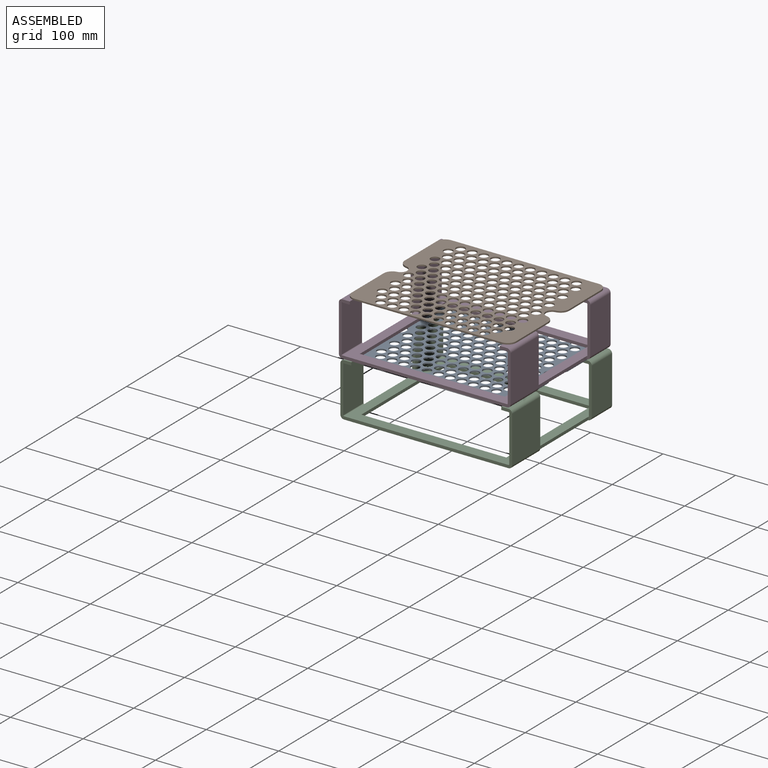
[diagram: assembled view]
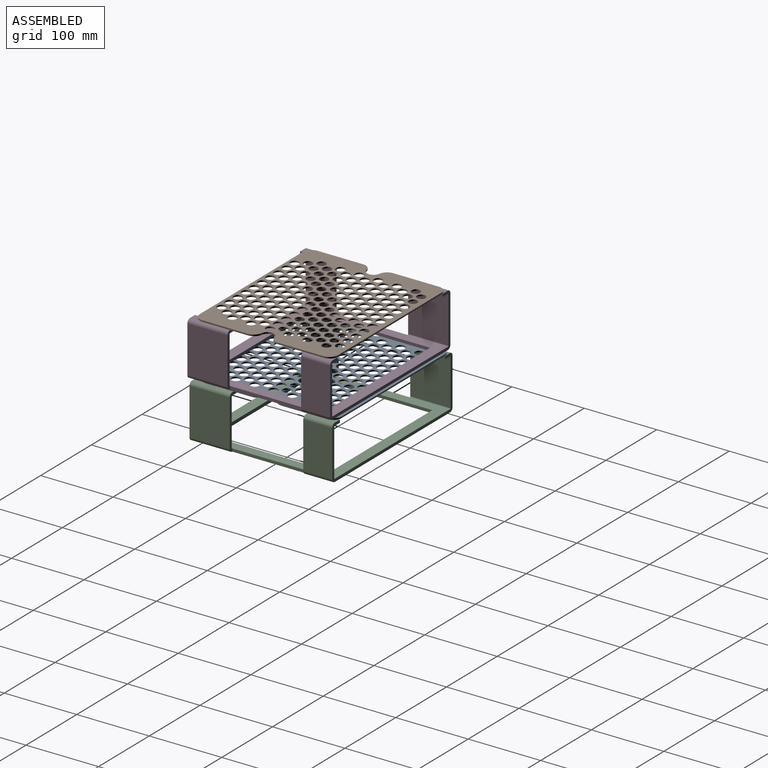
[diagram: assembled view, second angle]
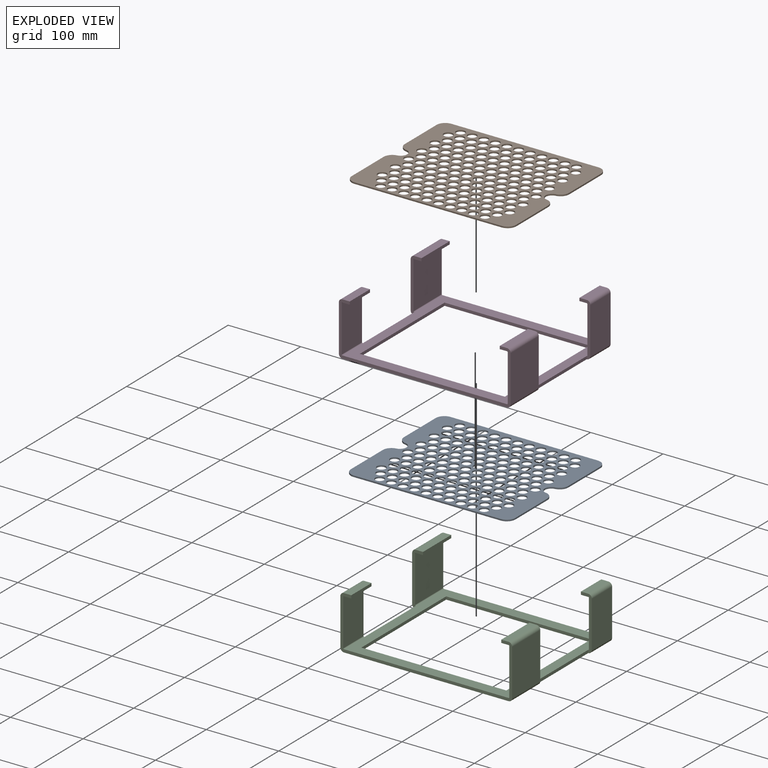
[diagram: exploded view]
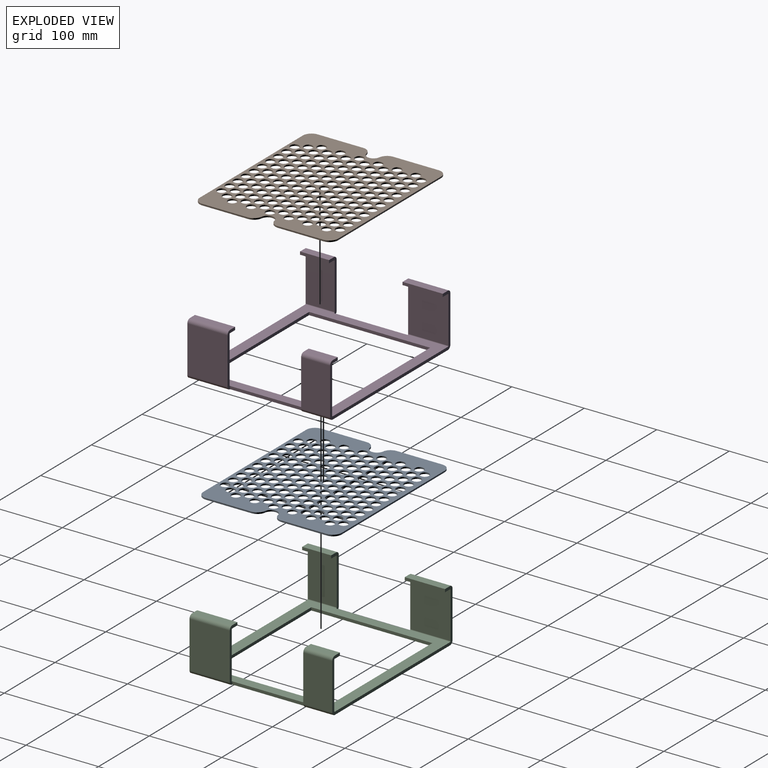
[diagram: exploded view, second angle]
ASSEMBLY  parts=4 mates=3
PART A: 177 faces, bbox 227x191x2 mm
  f0: plane 62.72x2mm, normal (-1,0,0), area 125.4mm2, adj f8,f9,f169,f170
  f1: plane 203x2mm, normal (0,-1,0), area 406mm2, adj f8,f9,f170,f171
  f2: plane 62.72x2mm, normal (1,0,0), area 125.4mm2, adj f8,f9,f171,f172
  f3: cylinder r=9mm len=17.82mm, axis (0,0,-1), area 51.4mm2, adj f8,f9,f172,f173
  f4: plane 62.72x2mm, normal (1,0,0), area 125.4mm2, adj f8,f9,f173,f174
  f5: plane 203x2mm, normal (0,1,0), area 406mm2, adj f8,f9,f174,f175
  f6: plane 62.72x2mm, normal (-1,0,0), area 125.4mm2, adj f8,f9,f175,f176
  f7: cylinder r=9mm len=17.82mm, axis (0,0,-1), area 51.4mm2, adj f8,f9,f169,f176
  f8: plane 227x191mm, normal (0,0,1), area 24557.8mm2, adj f0,f1,f2,f3,f4,f5,f6,f7
  f9: plane 227x191mm, normal (0,0,-1), area 24557.8mm2, adj f0,f1,f2,f3,f4,f5,f6,f7
  f10: cylinder r=6mm len=12mm, axis (0,0,1), area 75.4mm2, adj f8,f9
  f11: cylinder r=6mm len=12mm, axis (0,0,1), area 75.4mm2, adj f8,f9
  f12: cylinder r=6mm len=12mm, axis (0,0,1), area 75.4mm2, adj f8,f9
  f13: cylinder r=6mm len=12mm, axis (0,0,1), area 75.4mm2, adj f8,f9
  f14: cylinder r=6mm len=12mm, axis (0,0,1), area 75.4mm2, adj f8,f9
  f15: cylinder r=6mm len=12mm, axis (0,0,1), area 75.4mm2, adj f8,f9
  f16: cylinder r=6mm len=12mm, axis (0,0,1), area 75.4mm2, adj f8,f9
  f17: cylinder r=6mm len=12mm, axis (0,0,1), area 75.4mm2, adj f8,f9
  f18: cylinder r=6mm len=12mm, axis (0,0,1), area 75.4mm2, adj f8,f9
  f19: cylinder r=6mm len=12mm, axis (0,0,1), area 75.4mm2, adj f8,f9
  f20: cylinder r=6mm len=12mm, axis (0,0,1), area 75.4mm2, adj f8,f9
  f21: cylinder r=6mm len=12mm, axis (0,0,1), area 75.4mm2, adj f8,f9
  f22: cylinder r=6mm len=12mm, axis (0,0,1), area 75.4mm2, adj f8,f9
  f23: cylinder r=6mm len=12mm, axis (0,0,1), area 75.4mm2, adj f8,f9
  f24: cylinder r=6mm len=12mm, axis (0,0,1), area 75.4mm2, adj f8,f9
  f25: cylinder r=6mm len=12mm, axis (0,0,1), area 75.4mm2, adj f8,f9
  f26: cylinder r=6mm len=12mm, axis (0,0,1), area 75.4mm2, adj f8,f9
  f27: cylinder r=6mm len=12mm, axis (0,0,1), area 75.4mm2, adj f8,f9
  f28: cylinder r=6mm len=12mm, axis (0,0,1), area 75.4mm2, adj f8,f9
  f29: cylinder r=6mm len=12mm, axis (0,0,1), area 75.4mm2, adj f8,f9
  f30: cylinder r=6mm len=12mm, axis (0,0,1), area 75.4mm2, adj f8,f9
  f31: cylinder r=6mm len=12mm, axis (0,0,1), area 75.4mm2, adj f8,f9
  f32: cylinder r=6mm len=12mm, axis (0,0,1), area 75.4mm2, adj f8,f9
  f33: cylinder r=6mm len=12mm, axis (0,0,1), area 75.4mm2, adj f8,f9
  f34: cylinder r=6mm len=12mm, axis (0,0,1), area 75.4mm2, adj f8,f9
  f35: cylinder r=6mm len=12mm, axis (0,0,1), area 75.4mm2, adj f8,f9
  f36: cylinder r=6mm len=12mm, axis (0,0,1), area 75.4mm2, adj f8,f9
  f37: cylinder r=6mm len=12mm, axis (0,0,1), area 75.4mm2, adj f8,f9
  f38: cylinder r=6mm len=12mm, axis (0,0,1), area 75.4mm2, adj f8,f9
  f39: cylinder r=6mm len=12mm, axis (0,0,1), area 75.4mm2, adj f8,f9
  f40: cylinder r=6mm len=12mm, axis (0,0,1), area 75.4mm2, adj f8,f9
  f41: cylinder r=6mm len=12mm, axis (0,0,1), area 75.4mm2, adj f8,f9
  f42: cylinder r=6mm len=12mm, axis (0,0,1), area 75.4mm2, adj f8,f9
  f43: cylinder r=6mm len=12mm, axis (0,0,1), area 75.4mm2, adj f8,f9
  f44: cylinder r=6mm len=12mm, axis (0,0,1), area 75.4mm2, adj f8,f9
  f45: cylinder r=6mm len=12mm, axis (0,0,1), area 75.4mm2, adj f8,f9
  f46: cylinder r=6mm len=12mm, axis (0,0,1), area 75.4mm2, adj f8,f9
  f47: cylinder r=6mm len=12mm, axis (0,0,1), area 75.4mm2, adj f8,f9
  f48: cylinder r=6mm len=12mm, axis (0,0,1), area 75.4mm2, adj f8,f9
  f49: cylinder r=6mm len=12mm, axis (0,0,1), area 75.4mm2, adj f8,f9
  f50: cylinder r=6mm len=12mm, axis (0,0,1), area 75.4mm2, adj f8,f9
  f51: cylinder r=6mm len=12mm, axis (0,0,1), area 75.4mm2, adj f8,f9
  f52: cylinder r=6mm len=12mm, axis (0,0,1), area 75.4mm2, adj f8,f9
  f53: cylinder r=6mm len=12mm, axis (0,0,1), area 75.4mm2, adj f8,f9
  f54: cylinder r=6mm len=12mm, axis (0,0,1), area 75.4mm2, adj f8,f9
  f55: cylinder r=6mm len=12mm, axis (0,0,1), area 75.4mm2, adj f8,f9
  f56: cylinder r=6mm len=12mm, axis (0,0,1), area 75.4mm2, adj f8,f9
  f57: cylinder r=6mm len=12mm, axis (0,0,1), area 75.4mm2, adj f8,f9
  f58: cylinder r=6mm len=12mm, axis (0,0,1), area 75.4mm2, adj f8,f9
  f59: cylinder r=6mm len=12mm, axis (0,0,1), area 75.4mm2, adj f8,f9
  f60: cylinder r=6mm len=12mm, axis (0,0,1), area 75.4mm2, adj f8,f9
  f61: cylinder r=6mm len=12mm, axis (0,0,1), area 75.4mm2, adj f8,f9
  f62: cylinder r=6mm len=12mm, axis (0,0,1), area 75.4mm2, adj f8,f9
  f63: cylinder r=6mm len=12mm, axis (0,0,1), area 75.4mm2, adj f8,f9
  f64: cylinder r=6mm len=12mm, axis (0,0,1), area 75.4mm2, adj f8,f9
  f65: cylinder r=6mm len=12mm, axis (0,0,1), area 75.4mm2, adj f8,f9
  f66: cylinder r=6mm len=12mm, axis (0,0,1), area 75.4mm2, adj f8,f9
  f67: cylinder r=6mm len=12mm, axis (0,0,1), area 75.4mm2, adj f8,f9
  f68: cylinder r=6mm len=12mm, axis (0,0,1), area 75.4mm2, adj f8,f9
  f69: cylinder r=6mm len=12mm, axis (0,0,1), area 75.4mm2, adj f8,f9
  f70: cylinder r=6mm len=12mm, axis (0,0,1), area 75.4mm2, adj f8,f9
  f71: cylinder r=6mm len=12mm, axis (0,0,1), area 75.4mm2, adj f8,f9
  f72: cylinder r=6mm len=12mm, axis (0,0,1), area 75.4mm2, adj f8,f9
  f73: cylinder r=6mm len=12mm, axis (0,0,1), area 75.4mm2, adj f8,f9
  f74: cylinder r=6mm len=12mm, axis (0,0,1), area 75.4mm2, adj f8,f9
  f75: cylinder r=6mm len=12mm, axis (0,0,1), area 75.4mm2, adj f8,f9
  f76: cylinder r=6mm len=12mm, axis (0,0,1), area 75.4mm2, adj f8,f9
  f77: cylinder r=6mm len=12mm, axis (0,0,1), area 75.4mm2, adj f8,f9
  f78: cylinder r=6mm len=12mm, axis (0,0,1), area 75.4mm2, adj f8,f9
  f79: cylinder r=6mm len=12mm, axis (0,0,1), area 75.4mm2, adj f8,f9
  f80: cylinder r=6mm len=12mm, axis (0,0,1), area 75.4mm2, adj f8,f9
  f81: cylinder r=6mm len=12mm, axis (0,0,1), area 75.4mm2, adj f8,f9
  f82: cylinder r=6mm len=12mm, axis (0,0,1), area 75.4mm2, adj f8,f9
  f83: cylinder r=6mm len=12mm, axis (0,0,1), area 75.4mm2, adj f8,f9
  f84: cylinder r=6mm len=12mm, axis (0,0,1), area 75.4mm2, adj f8,f9
  f85: cylinder r=6mm len=12mm, axis (0,0,1), area 75.4mm2, adj f8,f9
  f86: cylinder r=6mm len=12mm, axis (0,0,1), area 75.4mm2, adj f8,f9
  f87: cylinder r=6mm len=12mm, axis (0,0,1), area 75.4mm2, adj f8,f9
  f88: cylinder r=6mm len=12mm, axis (0,0,1), area 75.4mm2, adj f8,f9
  f89: cylinder r=6mm len=12mm, axis (0,0,1), area 75.4mm2, adj f8,f9
  f90: cylinder r=6mm len=12mm, axis (0,0,1), area 75.4mm2, adj f8,f9
  f91: cylinder r=6mm len=12mm, axis (0,0,1), area 75.4mm2, adj f8,f9
  f92: cylinder r=6mm len=12mm, axis (0,0,1), area 75.4mm2, adj f8,f9
  f93: cylinder r=6mm len=12mm, axis (0,0,1), area 75.4mm2, adj f8,f9
  f94: cylinder r=6mm len=12mm, axis (0,0,1), area 75.4mm2, adj f8,f9
  f95: cylinder r=6mm len=12mm, axis (0,0,1), area 75.4mm2, adj f8,f9
  f96: cylinder r=6mm len=12mm, axis (0,0,1), area 75.4mm2, adj f8,f9
  f97: cylinder r=6mm len=12mm, axis (0,0,1), area 75.4mm2, adj f8,f9
  f98: cylinder r=6mm len=12mm, axis (0,0,1), area 75.4mm2, adj f8,f9
  f99: cylinder r=6mm len=12mm, axis (0,0,1), area 75.4mm2, adj f8,f9
  f100: cylinder r=6mm len=12mm, axis (0,0,1), area 75.4mm2, adj f8,f9
  f101: cylinder r=6mm len=12mm, axis (0,0,1), area 75.4mm2, adj f8,f9
  f102: cylinder r=6mm len=12mm, axis (0,0,1), area 75.4mm2, adj f8,f9
  f103: cylinder r=6mm len=12mm, axis (0,0,1), area 75.4mm2, adj f8,f9
  f104: cylinder r=6mm len=12mm, axis (0,0,1), area 75.4mm2, adj f8,f9
  f105: cylinder r=6mm len=12mm, axis (0,0,1), area 75.4mm2, adj f8,f9
  f106: cylinder r=6mm len=12mm, axis (0,0,1), area 75.4mm2, adj f8,f9
  f107: cylinder r=6mm len=12mm, axis (0,0,1), area 75.4mm2, adj f8,f9
  f108: cylinder r=6mm len=12mm, axis (0,0,1), area 75.4mm2, adj f8,f9
  f109: cylinder r=6mm len=12mm, axis (0,0,1), area 75.4mm2, adj f8,f9
  f110: cylinder r=6mm len=12mm, axis (0,0,1), area 75.4mm2, adj f8,f9
  f111: cylinder r=6mm len=12mm, axis (0,0,1), area 75.4mm2, adj f8,f9
  f112: cylinder r=6mm len=12mm, axis (0,0,1), area 75.4mm2, adj f8,f9
  f113: cylinder r=6mm len=12mm, axis (0,0,1), area 75.4mm2, adj f8,f9
  f114: cylinder r=6mm len=12mm, axis (0,0,1), area 75.4mm2, adj f8,f9
  f115: cylinder r=6mm len=12mm, axis (0,0,1), area 75.4mm2, adj f8,f9
  f116: cylinder r=6mm len=12mm, axis (0,0,1), area 75.4mm2, adj f8,f9
  f117: cylinder r=6mm len=12mm, axis (0,0,1), area 75.4mm2, adj f8,f9
  f118: cylinder r=6mm len=12mm, axis (0,0,1), area 75.4mm2, adj f8,f9
  f119: cylinder r=6mm len=12mm, axis (0,0,1), area 75.4mm2, adj f8,f9
  f120: cylinder r=6mm len=12mm, axis (0,0,1), area 75.4mm2, adj f8,f9
  f121: cylinder r=6mm len=12mm, axis (0,0,1), area 75.4mm2, adj f8,f9
  f122: cylinder r=6mm len=12mm, axis (0,0,1), area 75.4mm2, adj f8,f9
  f123: cylinder r=6mm len=12mm, axis (0,0,1), area 75.4mm2, adj f8,f9
  f124: cylinder r=6mm len=12mm, axis (0,0,1), area 75.4mm2, adj f8,f9
  f125: cylinder r=6mm len=12mm, axis (0,0,1), area 75.4mm2, adj f8,f9
  f126: cylinder r=6mm len=12mm, axis (0,0,1), area 75.4mm2, adj f8,f9
  f127: cylinder r=6mm len=12mm, axis (0,0,1), area 75.4mm2, adj f8,f9
  f128: cylinder r=6mm len=12mm, axis (0,0,1), area 75.4mm2, adj f8,f9
  f129: cylinder r=6mm len=12mm, axis (0,0,1), area 75.4mm2, adj f8,f9
  f130: cylinder r=6mm len=12mm, axis (0,0,1), area 75.4mm2, adj f8,f9
  f131: cylinder r=6mm len=12mm, axis (0,0,1), area 75.4mm2, adj f8,f9
  f132: cylinder r=6mm len=12mm, axis (0,0,1), area 75.4mm2, adj f8,f9
  f133: cylinder r=6mm len=12mm, axis (0,0,1), area 75.4mm2, adj f8,f9
  f134: cylinder r=6mm len=12mm, axis (0,0,1), area 75.4mm2, adj f8,f9
  f135: cylinder r=6mm len=12mm, axis (0,0,1), area 75.4mm2, adj f8,f9
  f136: cylinder r=6mm len=12mm, axis (0,0,1), area 75.4mm2, adj f8,f9
  f137: cylinder r=6mm len=12mm, axis (0,0,1), area 75.4mm2, adj f8,f9
  f138: cylinder r=6mm len=12mm, axis (0,0,1), area 75.4mm2, adj f8,f9
  f139: cylinder r=6mm len=12mm, axis (0,0,1), area 75.4mm2, adj f8,f9
  f140: cylinder r=6mm len=12mm, axis (0,0,1), area 75.4mm2, adj f8,f9
  f141: cylinder r=6mm len=12mm, axis (0,0,1), area 75.4mm2, adj f8,f9
  f142: cylinder r=6mm len=12mm, axis (0,0,1), area 75.4mm2, adj f8,f9
  f143: cylinder r=6mm len=12mm, axis (0,0,1), area 75.4mm2, adj f8,f9
  f144: cylinder r=6mm len=12mm, axis (0,0,1), area 75.4mm2, adj f8,f9
  f145: cylinder r=6mm len=12mm, axis (0,0,1), area 75.4mm2, adj f8,f9
  f146: cylinder r=6mm len=12mm, axis (0,0,1), area 75.4mm2, adj f8,f9
  f147: cylinder r=6mm len=12mm, axis (0,0,1), area 75.4mm2, adj f8,f9
  f148: cylinder r=6mm len=12mm, axis (0,0,1), area 75.4mm2, adj f8,f9
  f149: cylinder r=6mm len=12mm, axis (0,0,1), area 75.4mm2, adj f8,f9
  f150: cylinder r=6mm len=12mm, axis (0,0,1), area 75.4mm2, adj f8,f9
  f151: cylinder r=6mm len=12mm, axis (0,0,1), area 75.4mm2, adj f8,f9
  f152: cylinder r=6mm len=12mm, axis (0,0,1), area 75.4mm2, adj f8,f9
  f153: cylinder r=6mm len=12mm, axis (0,0,1), area 75.4mm2, adj f8,f9
  f154: cylinder r=6mm len=12mm, axis (0,0,1), area 75.4mm2, adj f8,f9
  f155: cylinder r=6mm len=12mm, axis (0,0,1), area 75.4mm2, adj f8,f9
  f156: cylinder r=6mm len=12mm, axis (0,0,1), area 75.4mm2, adj f8,f9
  f157: cylinder r=6mm len=12mm, axis (0,0,1), area 75.4mm2, adj f8,f9
  f158: cylinder r=6mm len=12mm, axis (0,0,1), area 75.4mm2, adj f8,f9
  f159: cylinder r=6mm len=12mm, axis (0,0,1), area 75.4mm2, adj f8,f9
  f160: cylinder r=6mm len=12mm, axis (0,0,1), area 75.4mm2, adj f8,f9
  f161: cylinder r=6mm len=12mm, axis (0,0,1), area 75.4mm2, adj f8,f9
  f162: cylinder r=6mm len=12mm, axis (0,0,1), area 75.4mm2, adj f8,f9
  f163: cylinder r=6mm len=12mm, axis (0,0,1), area 75.4mm2, adj f8,f9
  f164: cylinder r=6mm len=12mm, axis (0,0,1), area 75.4mm2, adj f8,f9
  f165: cylinder r=6mm len=12mm, axis (0,0,1), area 75.4mm2, adj f8,f9
  f166: cylinder r=6mm len=12mm, axis (0,0,1), area 75.4mm2, adj f8,f9
  f167: cylinder r=6mm len=12mm, axis (0,0,1), area 75.4mm2, adj f8,f9
  f168: cylinder r=6mm len=12mm, axis (0,0,1), area 75.4mm2, adj f8,f9
  f169: cylinder r=12mm len=11.88mm, axis (0,0,-1), area 34.3mm2, adj f0,f7,f8,f9
  f170: cylinder r=12mm len=12mm, axis (0,0,1), area 37.7mm2, adj f0,f1,f8,f9
  f171: cylinder r=12mm len=12mm, axis (0,0,-1), area 37.7mm2, adj f1,f2,f8,f9
  f172: cylinder r=12mm len=11.88mm, axis (0,0,-1), area 34.3mm2, adj f2,f3,f8,f9
  f173: cylinder r=12mm len=11.88mm, axis (0,0,-1), area 34.3mm2, adj f3,f4,f8,f9
  f174: cylinder r=12mm len=12mm, axis (0,0,1), area 37.7mm2, adj f4,f5,f8,f9
  f175: cylinder r=12mm len=12mm, axis (0,0,-1), area 37.7mm2, adj f5,f6,f8,f9
  f176: cylinder r=12mm len=11.88mm, axis (0,0,-1), area 34.3mm2, adj f6,f7,f8,f9
PART B: same geometry as A
PART C: 78 faces, bbox 237x197x74 mm
  f0: plane 101.5x4mm, normal (-1,0,0), area 406mm2, adj f2,f3,f58,f74
  f1: plane 101.5x4mm, normal (1,0,0), area 406mm2, adj f2,f3,f23,f41
  f2: plane 227x197mm, normal (0,0,1), area 11319mm2, adj f0,f1,f4,f5,f6,f7,f8,f9
  f3: plane 227x197mm, normal (0,0,-1), area 11319mm2, adj f0,f1,f4,f5,f6,f7,f8,f9
  f4: plane 227x4mm, normal (0,1,0), area 908mm2, adj f2,f3,f24,f75
  f5: plane 227x4mm, normal (0,-1,0), area 908mm2, adj f2,f3,f40,f57
  f6: plane 200x4mm, normal (0,-1,0), area 800mm2, adj f2,f3,f7,f9
  f7: plane 167x4mm, normal (1,0,0), area 668mm2, adj f2,f3,f6,f8
  f8: plane 200x4mm, normal (0,1,0), area 800mm2, adj f2,f3,f7,f9
  f9: plane 167x4mm, normal (-1,0,0), area 668mm2, adj f2,f3,f6,f8
  f10: plane 64x4mm, normal (0,-1,0), area 256mm2, adj f12,f13,f20,f23
  f11: plane 64x4mm, normal (0,1,0), area 256mm2, adj f12,f13,f19,f24
  f12: plane 64x40mm, normal (1,0,0), area 2560mm2, adj f10,f11,f21,f25
  f13: plane 64x40mm, normal (-1,0,0), area 2560mm2, adj f10,f11,f22,f26
  f14: plane 10x4mm, normal (0,-1,0), area 40mm2, adj f16,f17,f18,f20
  f15: plane 10x4mm, normal (0,1,0), area 40mm2, adj f16,f17,f18,f19
  f16: plane 40x4mm, normal (-1,0,0), area 160mm2, adj f14,f15,f17,f18
  f17: plane 40x10mm, normal (0,0,1), area 400mm2, adj f14,f15,f16,f21
  f18: plane 40x10mm, normal (0,0,-1), area 400mm2, adj f14,f15,f16,f22
  f19: plane 5x5mm, normal (0,1,0), area 18.8mm2, adj f11,f15,f21,f22
  f20: plane 5x5mm, normal (0,-1,0), area 18.8mm2, adj f10,f14,f21,f22
  f21: cylinder r=5mm len=40mm, axis (0,1,0), area 314.2mm2, adj f12,f17,f19,f20
  f22: cylinder r=1mm len=40mm, axis (0,1,0), area 62.8mm2, adj f13,f18,f19,f20
  f23: plane 5x5mm, normal (0,-1,0), area 18.8mm2, adj f1,f10,f25,f26
  f24: plane 5x5mm, normal (0,1,0), area 18.8mm2, adj f4,f11,f25,f26
  f25: cylinder r=5mm len=40mm, axis (0,-1,0), area 314.2mm2, adj f3,f12,f23,f24
  f26: cylinder r=1mm len=40mm, axis (0,-1,0), area 62.8mm2, adj f2,f13,f23,f24
  f27: plane 64x4mm, normal (0,-1,0), area 256mm2, adj f29,f30,f37,f40
  f28: plane 64x4mm, normal (0,1,0), area 256mm2, adj f29,f30,f36,f41
  f29: plane 64x55.5mm, normal (1,0,0), area 3552mm2, adj f27,f28,f38,f42
  f30: plane 64x55.5mm, normal (-1,0,0), area 3552mm2, adj f27,f28,f39,f43
  f31: plane 10x4mm, normal (0,-1,0), area 40mm2, adj f33,f34,f35,f37
  f32: plane 10x4mm, normal (0,1,0), area 40mm2, adj f33,f34,f35,f36
  f33: plane 55.5x4mm, normal (-1,0,0), area 222mm2, adj f31,f32,f34,f35
  f34: plane 55.5x10mm, normal (0,0,1), area 555mm2, adj f31,f32,f33,f38
  f35: plane 55.5x10mm, normal (0,0,-1), area 555mm2, adj f31,f32,f33,f39
  f36: plane 5x5mm, normal (0,1,0), area 18.8mm2, adj f28,f32,f38,f39
  f37: plane 5x5mm, normal (0,-1,0), area 18.8mm2, adj f27,f31,f38,f39
  f38: cylinder r=5mm len=55.5mm, axis (0,1,0), area 435.9mm2, adj f29,f34,f36,f37
  f39: cylinder r=1mm len=55.5mm, axis (0,1,0), area 87.2mm2, adj f30,f35,f36,f37
  f40: plane 5x5mm, normal (0,-1,0), area 18.8mm2, adj f5,f27,f42,f43
  f41: plane 5x5mm, normal (0,1,0), area 18.8mm2, adj f1,f28,f42,f43
  f42: cylinder r=5mm len=55.5mm, axis (0,-1,0), area 435.9mm2, adj f3,f29,f40,f41
  f43: cylinder r=1mm len=55.5mm, axis (0,-1,0), area 87.2mm2, adj f2,f30,f40,f41
  f44: plane 64x4mm, normal (0,1,0), area 256mm2, adj f46,f47,f54,f58
  f45: plane 64x4mm, normal (0,-1,0), area 256mm2, adj f46,f47,f53,f57
  f46: plane 64x40mm, normal (-1,0,0), area 2560mm2, adj f44,f45,f55,f59
  f47: plane 64x40mm, normal (1,0,0), area 2560mm2, adj f44,f45,f56,f60
  f48: plane 10x4mm, normal (0,1,0), area 40mm2, adj f50,f51,f52,f54
  f49: plane 10x4mm, normal (0,-1,0), area 40mm2, adj f50,f51,f52,f53
  f50: plane 40x4mm, normal (1,0,0), area 160mm2, adj f48,f49,f51,f52
  f51: plane 40x10mm, normal (0,0,1), area 400mm2, adj f48,f49,f50,f55
  f52: plane 40x10mm, normal (0,0,-1), area 400mm2, adj f48,f49,f50,f56
  f53: plane 5x5mm, normal (0,-1,0), area 18.8mm2, adj f45,f49,f55,f56
  f54: plane 5x5mm, normal (0,1,0), area 18.8mm2, adj f44,f48,f55,f56
  f55: cylinder r=5mm len=40mm, axis (0,-1,0), area 314.2mm2, adj f46,f51,f53,f54
  f56: cylinder r=1mm len=40mm, axis (0,-1,0), area 62.8mm2, adj f47,f52,f53,f54
  f57: plane 5x5mm, normal (0,-1,0), area 18.8mm2, adj f5,f45,f59,f60
  f58: plane 5x5mm, normal (0,1,0), area 18.8mm2, adj f0,f44,f59,f60
  f59: cylinder r=5mm len=40mm, axis (0,-1,0), area 314.2mm2, adj f3,f46,f57,f58
  f60: cylinder r=1mm len=40mm, axis (0,-1,0), area 62.8mm2, adj f2,f47,f57,f58
  f61: plane 64x4mm, normal (0,1,0), area 256mm2, adj f63,f64,f71,f75
  f62: plane 64x4mm, normal (0,-1,0), area 256mm2, adj f63,f64,f70,f74
  f63: plane 64x55.5mm, normal (-1,0,0), area 3552mm2, adj f61,f62,f72,f76
  f64: plane 64x55.5mm, normal (1,0,0), area 3552mm2, adj f61,f62,f73,f77
  f65: plane 10x4mm, normal (0,1,0), area 40mm2, adj f67,f68,f69,f71
  f66: plane 10x4mm, normal (0,-1,0), area 40mm2, adj f67,f68,f69,f70
  f67: plane 55.5x4mm, normal (1,0,0), area 222mm2, adj f65,f66,f68,f69
  f68: plane 55.5x10mm, normal (0,0,1), area 555mm2, adj f65,f66,f67,f72
  f69: plane 55.5x10mm, normal (0,0,-1), area 555mm2, adj f65,f66,f67,f73
  f70: plane 5x5mm, normal (0,-1,0), area 18.8mm2, adj f62,f66,f72,f73
  f71: plane 5x5mm, normal (0,1,0), area 18.8mm2, adj f61,f65,f72,f73
  f72: cylinder r=5mm len=55.5mm, axis (0,-1,0), area 435.9mm2, adj f63,f68,f70,f71
  f73: cylinder r=1mm len=55.5mm, axis (0,-1,0), area 87.2mm2, adj f64,f69,f70,f71
  f74: plane 5x5mm, normal (0,-1,0), area 18.8mm2, adj f0,f62,f76,f77
  f75: plane 5x5mm, normal (0,1,0), area 18.8mm2, adj f4,f61,f76,f77
  f76: cylinder r=5mm len=55.5mm, axis (0,-1,0), area 435.9mm2, adj f3,f63,f74,f75
  f77: cylinder r=1mm len=55.5mm, axis (0,-1,0), area 87.2mm2, adj f2,f64,f74,f75
PART D: same geometry as C
PLACE A t=(-73.29,-50.17,58.54)mm
PLACE B t=(-70.23,-52.85,135.53)mm
PLACE C t=(-70.77,-52.51,-15.46)mm fixed
PLACE D t=(-70.77,-55.5,61.53)mm
MATE planar B.f9 <-> D.f51  axis (0,0,-1) through (-70.23,-52.32,135.53)mm
MATE planar D.f29 <-> C.f29  axis (1,0,0) through (47.73,-126.25,98.53)mm
MATE planar A.f9 <-> C.f34  axis (0,0,-1) through (-73.29,-49.64,58.54)mm
